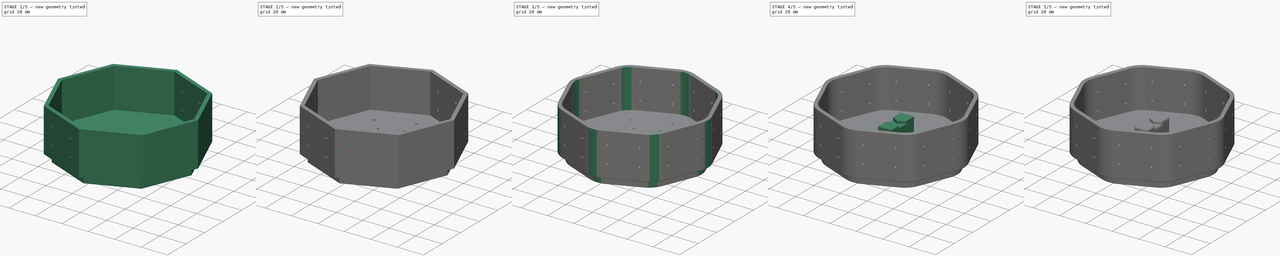
[diagram: build sequence overview — one tinted view per stage of 5, left to right]
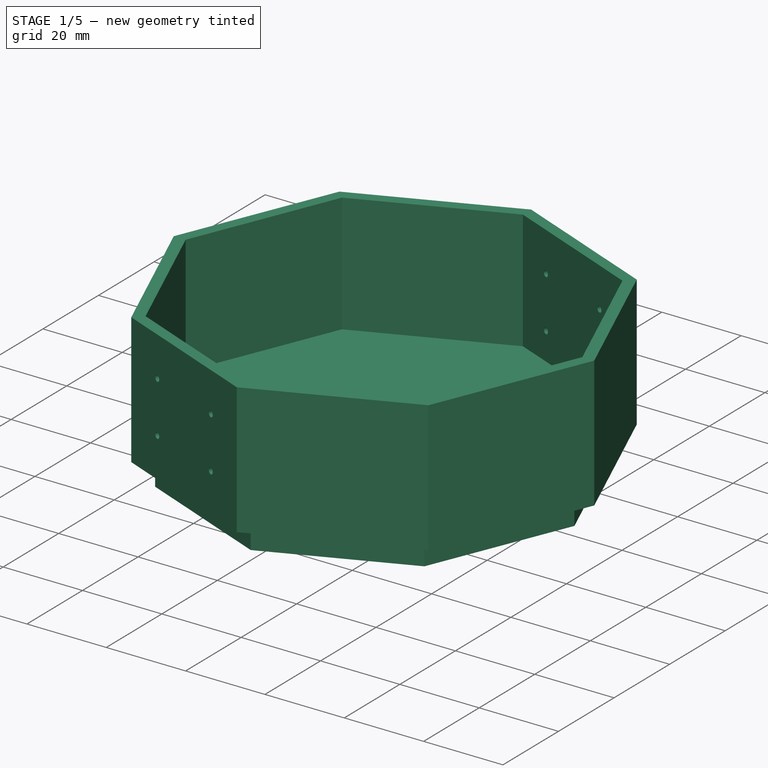
[diagram: stage 1 of 5 — iso view after this stage's code; geometry added in this stage tinted green]
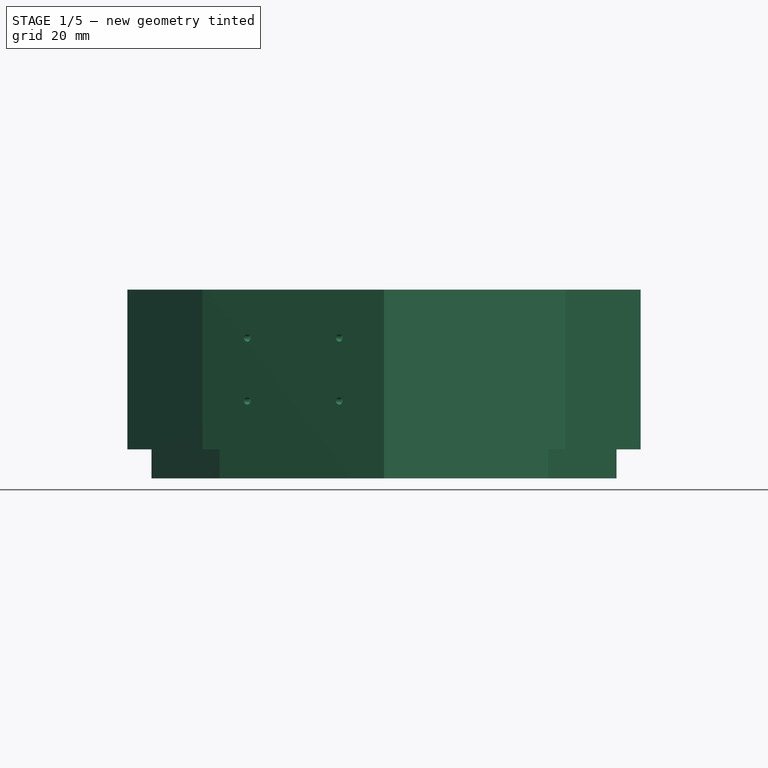
[diagram: stage 1 of 5 — front view after this stage's code; geometry added in this stage tinted green]
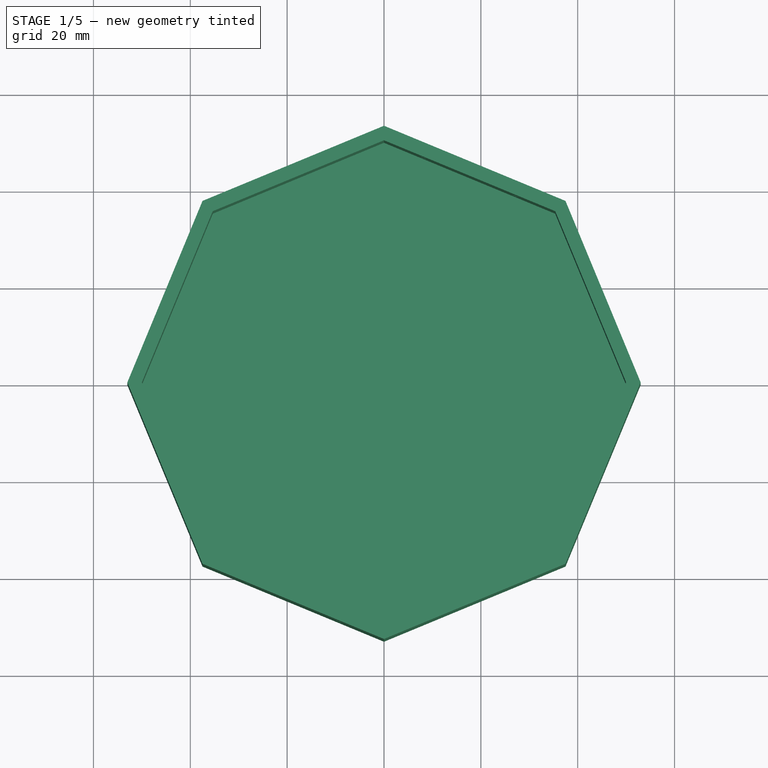
[diagram: stage 1 of 5 — top view after this stage's code; geometry added in this stage tinted green]
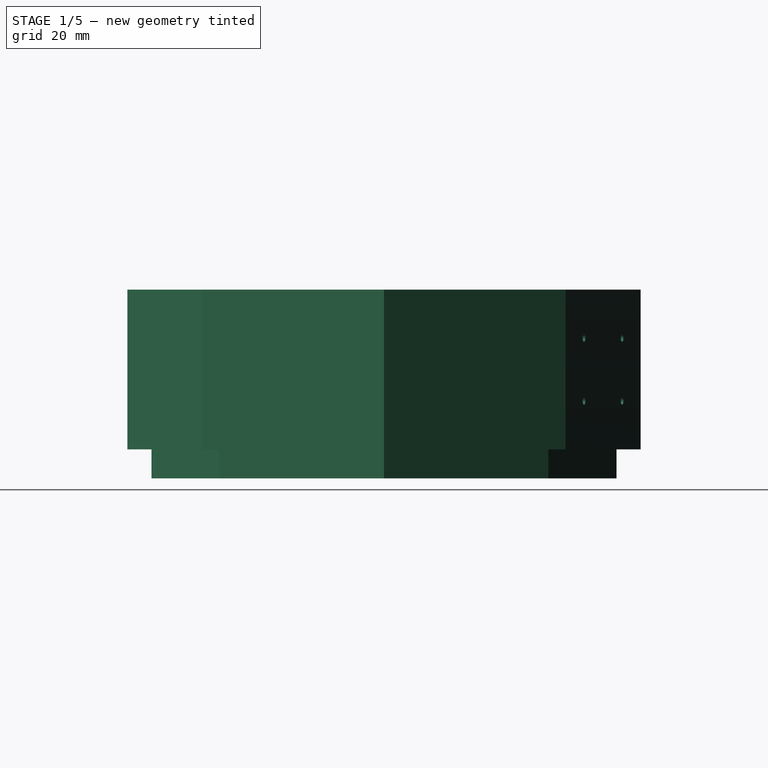
[diagram: stage 1 of 5 — right view after this stage's code; geometry added in this stage tinted green]
FCSTD DOCUMENT  (FreeCAD 0.19R24276 (Git))
Label: stackable-mold-01-03
License: All rights reserved
LicenseURL: http://en.wikipedia.org/wiki/All_rights_reserved
objects: Sketcher::SketchObject×14, PartDesign::Pocket×10, PartDesign::Fillet×7, PartDesign::Pad×4, PartDesign::Body×2, Spreadsheet::Sheet×1
note: 58 computed .brp shape members not serialized (recipe doc carries the construction recipe); baked Part::Feature solids carry a one-line shape summary decoded from their .brp

FEATURE [Sketcher::SketchObject] Sketch
  FullyConstrained = true
  MapMode = 5
  Support = -> [XY_Plane]
  expr: Constraints[25] = Spreadsheet.outer_dia
  sketch-geometry (9):
    g0: LineSegment StartX=-37.4767 StartY=37.4767 StartZ=0 EndX=-53 EndY=0 EndZ=0
    g1: LineSegment StartX=-53 StartY=0 StartZ=0 EndX=-37.4767 EndY=-37.4767 EndZ=0
    g2: LineSegment StartX=-37.4767 StartY=-37.4767 StartZ=0 EndX=0 EndY=-53 EndZ=0
    g3: LineSegment StartX=0 StartY=-53 StartZ=0 EndX=37.4767 EndY=-37.4767 EndZ=0
    g4: LineSegment StartX=37.4767 StartY=-37.4767 StartZ=0 EndX=53 EndY=0 EndZ=0
    g5: LineSegment StartX=53 StartY=0 StartZ=0 EndX=37.4767 EndY=37.4767 EndZ=0
    g6: LineSegment StartX=37.4767 StartY=37.4767 StartZ=0 EndX=7.1e-15 EndY=53 EndZ=0
    g7: LineSegment StartX=7.1e-15 StartY=53 StartZ=0 EndX=-37.4767 EndY=37.4767 EndZ=0
    g8: Circle CenterX=0 CenterY=0 CenterZ=0 NormalX=0 NormalY=0 NormalZ=1 AngleXU=0 Radius=53
  constraints (20):
    c: Coincident(g0,g1)
    c: Coincident(g1,g2)
    c: Coincident(g2,g3)
    c: Coincident(g3,g4)
    c: Coincident(g4,g5)
    c: Coincident(g5,g6)
    c: Coincident(g6,g7)
    c: Coincident(g7,g0)
    c: Equal(g0, g1-g7) x7
    c: PointOnObject(g0,g8)
    c: PointOnObject(g1,g8)
    c: PointOnObject(g2,g8)
    c: PointOnObject(g3,g8)
    c: PointOnObject(g4,g8)
    c: PointOnObject(g5,g8)
    c: PointOnObject(g6,g8)
    c: PointOnObject(g7,g8)
    c: Coincident(g8,g-1)
    c: PointOnObject(g0,g-1)
    c: DistanceX(g0,g4) = 106
FEATURE [Spreadsheet::Sheet] Spreadsheet
  cells = A1=inner_dia; B1(inner_dia)==100mm; A2=inner_height; B2(inner_height)==30mm; A3=thickness; B3(thickness)==3mm; A4=outer_dia; B4(outer_dia)==inner_dia + thickness * 2; A5=outer_height; B5(outer_height)==inner_height + thickness; A6=stack_margin; B6(stack_margin)==1mm; A7=stack_height; B7(stack_height)==thickness * 2; A9=lid_dia; B9(lid_dia)==inner_dia - stack_margin * 2; A10=handle_width; B10(handle_width)==10mm; A11=handle_height; B11(handle_height)==15mm; A12=handle_length; B12(handle_length)==lid_dia / 4; A13=slot_width; B13(slot_width)==2mm; A14=slot_height; B14(slot_height)==2mm; A16=filet_xs; B16(filet_xs)==0.5mm; A17=filet_sm; B17(filet_sm)==1.2mm; A18=filet_lg; B18(filet_lg)==8mm; A19=filet_xl; B19(filet_xl)==inner_dia / 5.5; A21=holes_dia; B21(holes_dia)==1.5mm; A22=holes_margin; B22(holes_margin)==inner_height / 3; A24=coin_hole_outer; B24(coin_hole_outer)==32mm; A25=coin_hole_inner; B25(coin_hole_inner)==28mm; A26=coin_height; B26(coin_height)==2mm
FEATURE [PartDesign::Pad] Pad
  Direction = (0,0,1)
  Length = 33
  Length2 = 100
  Profile = -> Sketch
  Type = 0
  expr: Length = Spreadsheet.outer_height
FEATURE [Sketcher::SketchObject] Sketch001
  FullyConstrained = true
  MapMode = 5
  Placement = pos=(0,0,33) rot=(0,0,1;0rad)
  Support = -> [Pad]
  expr: Constraints[25] = Spreadsheet.inner_dia
  sketch-geometry (9):
    g0: LineSegment StartX=-35.3553 StartY=35.3553 StartZ=0 EndX=-50 EndY=0 EndZ=0
    g1: LineSegment StartX=-50 StartY=0 StartZ=0 EndX=-35.3553 EndY=-35.3553 EndZ=0
    g2: LineSegment StartX=-35.3553 StartY=-35.3553 StartZ=0 EndX=7.1e-15 EndY=-50 EndZ=0
    g3: LineSegment StartX=7.1e-15 StartY=-50 StartZ=0 EndX=35.3553 EndY=-35.3553 EndZ=0
    g4: LineSegment StartX=35.3553 StartY=-35.3553 StartZ=0 EndX=50 EndY=7.1e-15 EndZ=0
    g5: LineSegment StartX=50 StartY=7.1e-15 StartZ=0 EndX=35.3553 EndY=35.3553 EndZ=0
    g6: LineSegment StartX=35.3553 StartY=35.3553 StartZ=0 EndX=-7.1e-15 EndY=50 EndZ=0
    g7: LineSegment StartX=-7.1e-15 StartY=50 StartZ=0 EndX=-35.3553 EndY=35.3553 EndZ=0
    g8: Circle CenterX=0 CenterY=0 CenterZ=0 NormalX=0 NormalY=0 NormalZ=1 AngleXU=0 Radius=50
  constraints (20):
    c: Coincident(g0,g1)
    c: Coincident(g1,g2)
    c: Coincident(g2,g3)
    c: Coincident(g3,g4)
    c: Coincident(g4,g5)
    c: Coincident(g5,g6)
    c: Coincident(g6,g7)
    c: Coincident(g7,g0)
    c: Equal(g0, g1-g7) x7
    c: PointOnObject(g0,g8)
    c: PointOnObject(g1,g8)
    c: PointOnObject(g2,g8)
    c: PointOnObject(g3,g8)
    c: PointOnObject(g4,g8)
    c: PointOnObject(g5,g8)
    c: PointOnObject(g6,g8)
    c: PointOnObject(g7,g8)
    c: Coincident(g8,g-1)
    c: PointOnObject(g0,g-1)
    c: DistanceX(g0,g4) = 100
FEATURE [PartDesign::Pocket] Pocket
  BaseFeature = -> Pad
  Length = 30
  Length2 = 100
  Profile = -> Sketch001
  Type = 0
  expr: Length = Spreadsheet.inner_height
FEATURE [Sketcher::SketchObject] Sketch002
  ExternalGeometry = -> [Pocket]
  FullyConstrained = true
  MapMode = 5
  Placement = pos=(0,0,0) rot=(1,0,0;3.14159rad)
  Support = -> [Pocket]
  expr: Constraints[25] = Spreadsheet.thickness + Spreadsheet.stack_margin * 2
  sketch-geometry (9):
    g0: LineSegment StartX=-33.9411 StartY=33.9411 StartZ=0 EndX=-48 EndY=0 EndZ=0
    g1: LineSegment StartX=-48 StartY=0 StartZ=0 EndX=-33.9411 EndY=-33.9411 EndZ=0
    g2: LineSegment StartX=-33.9411 StartY=-33.9411 StartZ=0 EndX=0 EndY=-48 EndZ=0
    g3: LineSegment StartX=0 StartY=-48 StartZ=0 EndX=33.9411 EndY=-33.9411 EndZ=0
    g4: LineSegment StartX=33.9411 StartY=-33.9411 StartZ=0 EndX=48 EndY=-7.1e-15 EndZ=0
    g5: LineSegment StartX=48 StartY=-7.1e-15 StartZ=0 EndX=33.9411 EndY=33.9411 EndZ=0
    g6: LineSegment StartX=33.9411 StartY=33.9411 StartZ=0 EndX=0 EndY=48 EndZ=0
    g7: LineSegment StartX=0 StartY=48 StartZ=0 EndX=-33.9411 EndY=33.9411 EndZ=0
    g8: Circle CenterX=0 CenterY=0 CenterZ=0 NormalX=0 NormalY=0 NormalZ=1 AngleXU=0 Radius=48
  constraints (20):
    c: Coincident(g0,g1)
    c: Coincident(g1,g2)
    c: Coincident(g2,g3)
    c: Coincident(g3,g4)
    c: Coincident(g4,g5)
    c: Coincident(g5,g6)
    c: Coincident(g6,g7)
    c: Coincident(g7,g0)
    c: Equal(g0, g1-g7) x7
    c: PointOnObject(g0,g8)
    c: PointOnObject(g1,g8)
    c: PointOnObject(g2,g8)
    c: PointOnObject(g3,g8)
    c: PointOnObject(g4,g8)
    c: PointOnObject(g5,g8)
    c: PointOnObject(g6,g8)
    c: PointOnObject(g7,g8)
    c: Coincident(g8,g-1)
    c: PointOnObject(g0,g-1)
    c: DistanceX(g-3,g0) = 5
FEATURE [PartDesign::Pad] Pad001
  BaseFeature = -> Pocket
  Direction = (0,0,-1)
  Length = 6
  Length2 = 100
  Profile = -> Sketch002
  Type = 0
  expr: Length = Spreadsheet.stack_height
FEATURE [Sketcher::SketchObject] Sketch003
  ExternalGeometry = -> [Pad001]
  FullyConstrained = true
  MapMode = 5
  Placement = pos=(-18.7383,-45.2383,0) rot=(0.962637,-0.19148,-0.19148;1.60887rad)
  Support = -> [Pad001]
  expr: Constraints[20] = Spreadsheet.holes_margin
  expr: Constraints[36] = Spreadsheet.holes_dia
  sketch-geometry (16):
    g0: LineSegment StartX=-20.2822 StartY=23 StartZ=0 EndX=20.2822 EndY=23 EndZ=0
    g1: LineSegment StartX=-20.2822 StartY=10 StartZ=0 EndX=20.2822 EndY=10 EndZ=0
    g2: LineSegment StartX=-10.2822 StartY=33 StartZ=0 EndX=-10.2822 EndY=0 EndZ=0
    g3: LineSegment StartX=10.2822 StartY=33 StartZ=0 EndX=10.2822 EndY=0 EndZ=0
    g4: LineSegment StartX=-20.2822 StartY=23 StartZ=0 EndX=-20.2822 EndY=33 EndZ=0
    g5: LineSegment StartX=-20.2822 StartY=10 StartZ=0 EndX=-20.2822 EndY=0 EndZ=0
    g6: LineSegment StartX=-10.2822 StartY=33 StartZ=0 EndX=-20.2822 EndY=33 EndZ=0
    g7: LineSegment StartX=10.2822 StartY=33 StartZ=0 EndX=20.2822 EndY=33 EndZ=0
    g8: GeomPoint X=-10.2822 Y=23 Z=0
    g9: GeomPoint X=-10.2822 Y=10 Z=0
    g10: GeomPoint X=10.2822 Y=10 Z=0
    g11: GeomPoint X=10.2822 Y=23 Z=0
    g12: Circle CenterX=-10.2822 CenterY=23 CenterZ=0 NormalX=0 NormalY=0 NormalZ=1 AngleXU=0 Radius=0.75
    g13: Circle CenterX=-10.2822 CenterY=10 CenterZ=0 NormalX=0 NormalY=0 NormalZ=1 AngleXU=0 Radius=0.75
    g14: Circle CenterX=10.2822 CenterY=10 CenterZ=0 NormalX=0 NormalY=0 NormalZ=1 AngleXU=0 Radius=0.75
    g15: Circle CenterX=10.2822 CenterY=23 CenterZ=0 NormalX=0 NormalY=0 NormalZ=1 AngleXU=0 Radius=0.75
  constraints (40):
    c: PointOnObject(g0,g-4)
    c: PointOnObject(g0,g-5)
    c: Horizontal(g0)
    c: PointOnObject(g1,g-4)
    c: PointOnObject(g1,g-5)
    c: Horizontal(g1)
    c: PointOnObject(g2,g-3)
    c: PointOnObject(g2,g-6)
    c: Vertical(g2)
    c: PointOnObject(g3,g-3)
    c: PointOnObject(g3,g-6)
    c: Vertical(g3)
    c: Coincident(g4,g0)
    c: Coincident(g4,g-4)
    c: Coincident(g5,g1)
    c: Coincident(g5,g-6)
    c: Coincident(g6,g2)
    c: Coincident(g6,g4)
    c: Coincident(g7,g3)
    c: Coincident(g7,g-5)
    c: DistanceY(g4,g4) = 10
    c: Equal(g6,g7)
    c: Equal(g7,g5)
    c: Equal(g5,g4)
    c: PointOnObject(g8,g2)
    c: PointOnObject(g9,g2)
    c: PointOnObject(g10,g3)
    c: PointOnObject(g11,g3)
    c: PointOnObject(g8,g0)
    c: PointOnObject(g9,g1)
    c: PointOnObject(g11,g0)
    c: PointOnObject(g10,g1)
    c: Coincident(g12,g8)
    c: Coincident(g13,g9)
    c: Coincident(g14,g10)
    c: Coincident(g15,g11)
    c: Diameter(g12) = 1.5
    c: Equal(g12,g13)
    c: Equal(g13,g14)
    c: Equal(g14,g15)
FEATURE [PartDesign::Pocket] Pocket001
  BaseFeature = -> Pad001
  Length = 5
  Length2 = 100
  Profile = -> Sketch003
  Type = 1
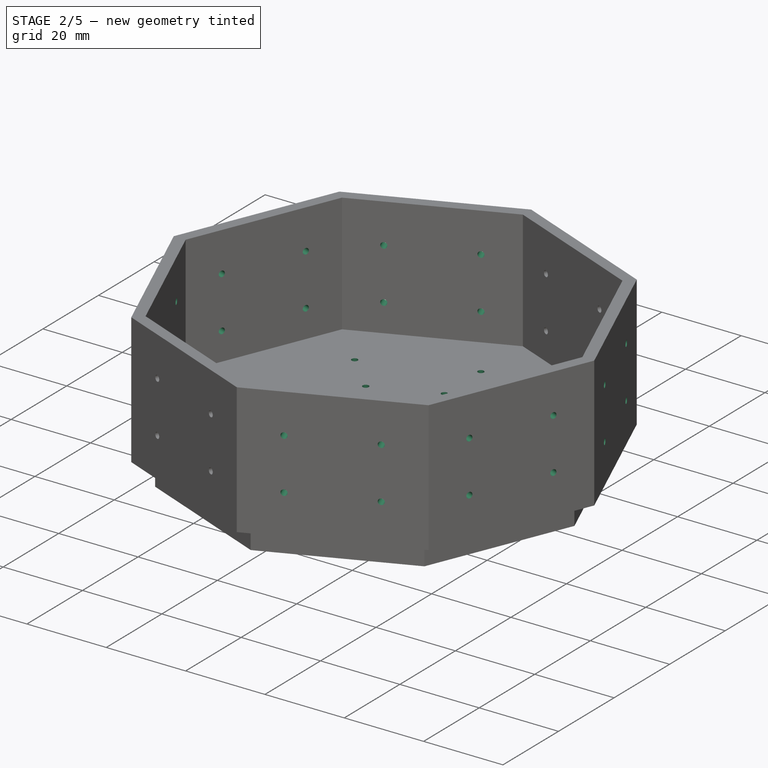
[diagram: stage 2 of 5 — iso view after this stage's code; geometry added in this stage tinted green]
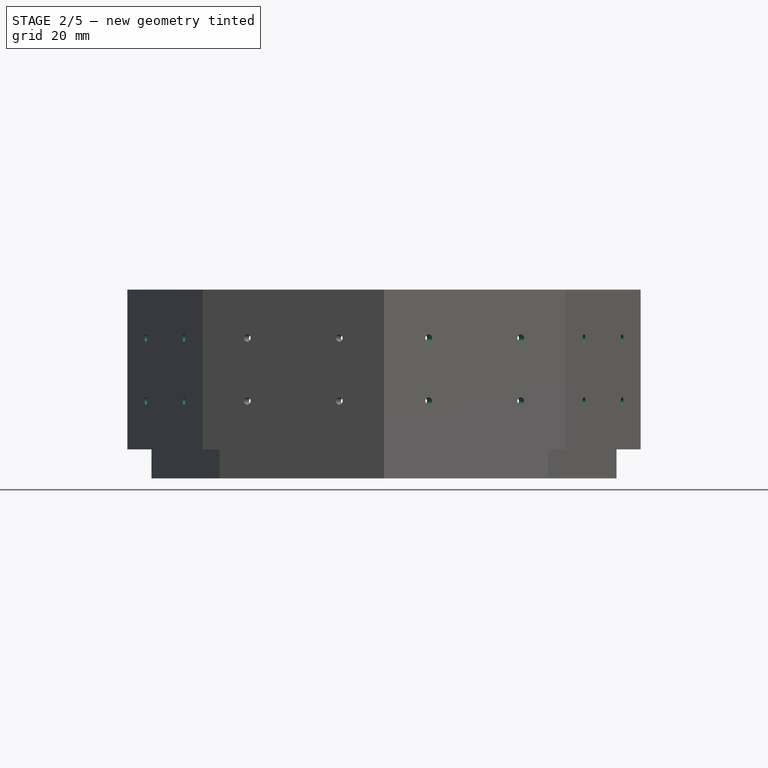
[diagram: stage 2 of 5 — front view after this stage's code; geometry added in this stage tinted green]
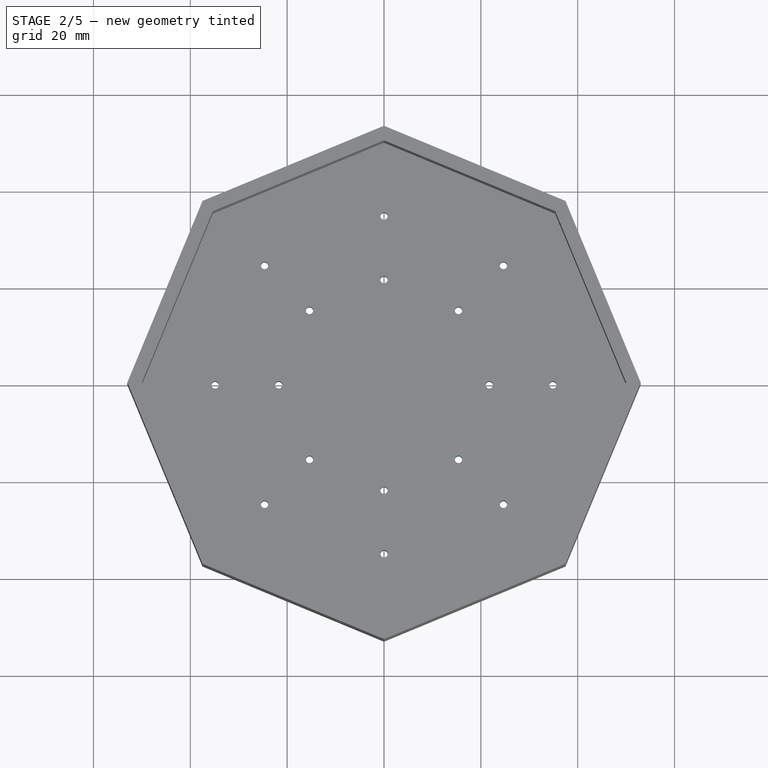
[diagram: stage 2 of 5 — top view after this stage's code; geometry added in this stage tinted green]
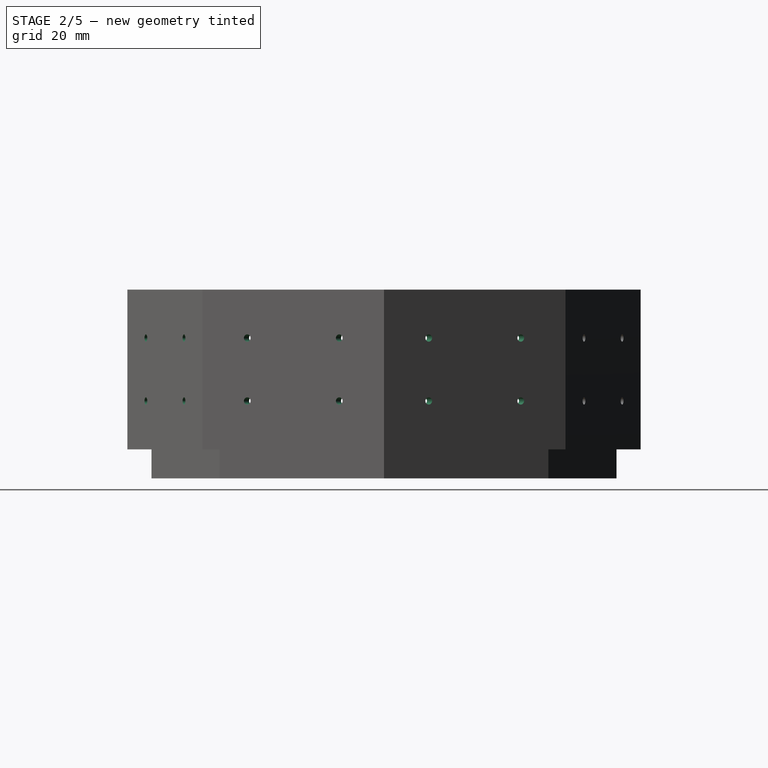
[diagram: stage 2 of 5 — right view after this stage's code; geometry added in this stage tinted green]
FEATURE [Sketcher::SketchObject] Sketch004
  ExternalGeometry = -> [Pocket001]
  FullyConstrained = true
  MapMode = 5
  Placement = pos=(18.7383,-45.2383,0) rot=(0.962637,0.19148,0.19148;1.60887rad)
  Support = -> [Pocket001]
  expr: Constraints[20] = Spreadsheet.holes_margin
  expr: Constraints[36] = Spreadsheet.holes_dia
  sketch-geometry (16):
    g0: LineSegment StartX=-10.2822 StartY=33 StartZ=0 EndX=-10.2822 EndY=0 EndZ=0
    g1: LineSegment StartX=10.2822 StartY=33 StartZ=0 EndX=10.2822 EndY=0 EndZ=0
    g2: LineSegment StartX=-20.2822 StartY=23 StartZ=0 EndX=20.2822 EndY=23 EndZ=0
    g3: LineSegment StartX=-20.2822 StartY=10 StartZ=0 EndX=20.2822 EndY=10 EndZ=0
    g4: LineSegment StartX=-20.2822 StartY=33 StartZ=0 EndX=-10.2822 EndY=33 EndZ=0
    g5: LineSegment StartX=10.2822 StartY=33 StartZ=0 EndX=20.2822 EndY=33 EndZ=0
    g6: LineSegment StartX=-20.2822 StartY=33 StartZ=0 EndX=-20.2822 EndY=23 EndZ=0
    g7: LineSegment StartX=-20.2822 StartY=10 StartZ=0 EndX=-20.2822 EndY=0 EndZ=0
    g8: GeomPoint X=-10.2822 Y=23 Z=0
    g9: GeomPoint X=10.2822 Y=23 Z=0
    g10: GeomPoint X=10.2822 Y=10 Z=0
    g11: GeomPoint X=-10.2822 Y=10 Z=0
    g12: Circle CenterX=-10.2822 CenterY=23 CenterZ=0 NormalX=0 NormalY=0 NormalZ=1 AngleXU=0 Radius=0.75
    g13: Circle CenterX=-10.2822 CenterY=10 CenterZ=0 NormalX=0 NormalY=0 NormalZ=1 AngleXU=0 Radius=0.75
    g14: Circle CenterX=10.2822 CenterY=23 CenterZ=0 NormalX=0 NormalY=0 NormalZ=1 AngleXU=0 Radius=0.75
    g15: Circle CenterX=10.2822 CenterY=10 CenterZ=0 NormalX=0 NormalY=0 NormalZ=1 AngleXU=0 Radius=0.75
  constraints (40):
    c: PointOnObject(g0,g-3)
    c: PointOnObject(g0,g-5)
    c: Vertical(g0)
    c: PointOnObject(g1,g-3)
    c: PointOnObject(g1,g-5)
    c: Vertical(g1)
    c: PointOnObject(g2,g-4)
    c: PointOnObject(g2,g-6)
    c: Horizontal(g2)
    c: PointOnObject(g3,g-4)
    c: PointOnObject(g3,g-6)
    c: Horizontal(g3)
    c: Coincident(g4,g-4)
    c: Coincident(g4,g0)
    c: Coincident(g5,g1)
    c: Coincident(g5,g-6)
    c: Coincident(g6,g4)
    c: Coincident(g6,g2)
    c: Coincident(g7,g3)
    c: Coincident(g7,g-5)
    c: DistanceY(g6,g6) = 10
    c: Equal(g4,g5)
    c: Equal(g5,g7)
    c: Equal(g7,g6)
    c: PointOnObject(g8,g0)
    c: PointOnObject(g9,g1)
    c: PointOnObject(g10,g1)
    c: PointOnObject(g11,g0)
    c: PointOnObject(g8,g2)
    c: PointOnObject(g11,g3)
    c: PointOnObject(g9,g2)
    c: PointOnObject(g10,g3)
    c: Coincident(g12,g8)
    c: Coincident(g13,g11)
    c: Coincident(g14,g9)
    c: Coincident(g15,g10)
    c: Diameter(g12) = 1.5
    c: Equal(g14,g15)
    c: Equal(g15,g13)
    c: Equal(g13,g12)
FEATURE [PartDesign::Pocket] Pocket002
  BaseFeature = -> Pocket001
  Length = 5
  Length2 = 100
  Profile = -> Sketch004
  Type = 1
FEATURE [Sketcher::SketchObject] Sketch005
  ExternalGeometry = -> [Pocket002]
  FullyConstrained = true
  MapMode = 5
  Placement = pos=(45.2383,-18.7383,0) rot=(0.726831,0.485653,0.485653;1.88458rad)
  Support = -> [Pocket002]
  expr: Constraints[20] = Spreadsheet.holes_margin
  expr: Constraints[36] = Spreadsheet.holes_dia
  sketch-geometry (16):
    g0: LineSegment StartX=-10.2822 StartY=33 StartZ=0 EndX=-10.2822 EndY=0 EndZ=0
    g1: LineSegment StartX=10.2822 StartY=33 StartZ=0 EndX=10.2822 EndY=0 EndZ=0
    g2: LineSegment StartX=-20.2822 StartY=23 StartZ=0 EndX=20.2822 EndY=23 EndZ=0
    g3: LineSegment StartX=-20.2822 StartY=10 StartZ=0 EndX=20.2822 EndY=10 EndZ=0
    g4: LineSegment StartX=-20.2822 StartY=33 StartZ=0 EndX=-10.2822 EndY=33 EndZ=0
    g5: LineSegment StartX=-20.2822 StartY=33 StartZ=0 EndX=-20.2822 EndY=23 EndZ=0
    g6: LineSegment StartX=10.2822 StartY=33 StartZ=0 EndX=20.2822 EndY=33 EndZ=0
    g7: LineSegment StartX=-20.2822 StartY=10 StartZ=0 EndX=-20.2822 EndY=-1.8e-15 EndZ=0
    g8: GeomPoint X=-10.2822 Y=23 Z=0
    g9: GeomPoint X=10.2822 Y=23 Z=0
    g10: GeomPoint X=10.2822 Y=10 Z=0
    g11: GeomPoint X=-10.2822 Y=10 Z=0
    g12: Circle CenterX=-10.2822 CenterY=23 CenterZ=0 NormalX=0 NormalY=0 NormalZ=1 AngleXU=0 Radius=0.75
    g13: Circle CenterX=-10.2822 CenterY=10 CenterZ=0 NormalX=0 NormalY=0 NormalZ=1 AngleXU=0 Radius=0.75
    g14: Circle CenterX=10.2822 CenterY=10 CenterZ=0 NormalX=0 NormalY=0 NormalZ=1 AngleXU=0 Radius=0.75
    g15: Circle CenterX=10.2822 CenterY=23 CenterZ=0 NormalX=0 NormalY=0 NormalZ=1 AngleXU=0 Radius=0.75
  constraints (40):
    c: PointOnObject(g0,g-3)
    c: PointOnObject(g0,g-6)
    c: Vertical(g0)
    c: PointOnObject(g1,g-3)
    c: PointOnObject(g1,g-6)
    c: Vertical(g1)
    c: PointOnObject(g2,g-4)
    c: PointOnObject(g2,g-5)
    c: Horizontal(g2)
    c: PointOnObject(g3,g-4)
    c: PointOnObject(g3,g-5)
    c: Horizontal(g3)
    c: Coincident(g4,g-4)
    c: Coincident(g4,g0)
    c: Coincident(g5,g4)
    c: Coincident(g5,g2)
    c: Coincident(g6,g1)
    c: Coincident(g6,g-5)
    c: Coincident(g7,g3)
    c: Coincident(g7,g-6)
    c: DistanceY(g5,g5) = 10
    c: Equal(g5,g7)
    c: Equal(g7,g6)
    c: Equal(g6,g4)
    c: PointOnObject(g8,g0)
    c: PointOnObject(g9,g1)
    c: PointOnObject(g10,g1)
    c: PointOnObject(g11,g0)
    c: PointOnObject(g8,g2)
    c: PointOnObject(g9,g2)
    c: PointOnObject(g10,g3)
    c: PointOnObject(g11,g3)
    c: Coincident(g12,g8)
    c: Coincident(g13,g11)
    c: Coincident(g14,g10)
    c: Coincident(g15,g9)
    c: Diameter(g12) = 1.5
    c: Equal(g15,g14)
    c: Equal(g14,g13)
    c: Equal(g13,g12)
FEATURE [PartDesign::Pocket] Pocket003
  BaseFeature = -> Pocket002
  Length = 5
  Length2 = 100
  Profile = -> Sketch005
  Type = 1
FEATURE [Sketcher::SketchObject] Sketch006
  ExternalGeometry = -> [Pocket003]
  FullyConstrained = true
  MapMode = 5
  Placement = pos=(45.2383,18.7383,0) rot=(0.427192,0.639338,0.639338;2.33414rad)
  Support = -> [Pocket003]
  expr: Constraints[36] = Spreadsheet.holes_dia
  sketch-geometry (16):
    g0: LineSegment StartX=-10.2822 StartY=33 StartZ=0 EndX=-10.2822 EndY=0 EndZ=0
    g1: LineSegment StartX=10.2822 StartY=33 StartZ=0 EndX=10.2822 EndY=0 EndZ=0
    g2: LineSegment StartX=-20.2822 StartY=23 StartZ=0 EndX=20.2822 EndY=23 EndZ=0
    g3: LineSegment StartX=-20.2822 StartY=10 StartZ=0 EndX=20.2822 EndY=10 EndZ=0
    g4: LineSegment StartX=-20.2822 StartY=33 StartZ=0 EndX=-10.2822 EndY=33 EndZ=0
    g5: LineSegment StartX=-20.2822 StartY=33 StartZ=0 EndX=-20.2822 EndY=23 EndZ=0
    g6: LineSegment StartX=10.2822 StartY=33 StartZ=0 EndX=20.2822 EndY=33 EndZ=0
    g7: LineSegment StartX=-20.2822 StartY=10 StartZ=0 EndX=-20.2822 EndY=-1.8e-15 EndZ=0
    g8: GeomPoint X=-10.2822 Y=23 Z=0
    g9: GeomPoint X=10.2822 Y=23 Z=0
    g10: GeomPoint X=-10.2822 Y=10 Z=0
    g11: GeomPoint X=10.2822 Y=10 Z=0
    g12: Circle CenterX=-10.2822 CenterY=23 CenterZ=0 NormalX=0 NormalY=0 NormalZ=1 AngleXU=0 Radius=0.75
    g13: Circle CenterX=-10.2822 CenterY=10 CenterZ=0 NormalX=0 NormalY=0 NormalZ=1 AngleXU=0 Radius=0.75
    g14: Circle CenterX=10.2822 CenterY=10 CenterZ=0 NormalX=0 NormalY=0 NormalZ=1 AngleXU=0 Radius=0.75
    g15: Circle CenterX=10.2822 CenterY=23 CenterZ=0 NormalX=0 NormalY=0 NormalZ=1 AngleXU=0 Radius=0.75
  constraints (40):
    c: PointOnObject(g0,g-3)
    c: PointOnObject(g0,g-5)
    c: Vertical(g0)
    c: PointOnObject(g1,g-3)
    c: PointOnObject(g1,g-5)
    c: Vertical(g1)
    c: PointOnObject(g2,g-4)
    c: PointOnObject(g2,g-6)
    c: Horizontal(g2)
    c: PointOnObject(g3,g-4)
    c: PointOnObject(g3,g-6)
    c: Horizontal(g3)
    c: Coincident(g4,g-4)
    c: Coincident(g4,g0)
    c: Coincident(g5,g4)
    c: Coincident(g5,g2)
    c: Coincident(g6,g1)
    c: Coincident(g6,g-6)
    c: Coincident(g7,g3)
    c: Coincident(g7,g-5)
    c: DistanceY(g5,g5) = 10
    c: Equal(g4,g6)
    c: Equal(g6,g7)
    c: Equal(g7,g5)
    c: PointOnObject(g8,g0)
    c: PointOnObject(g9,g1)
    c: PointOnObject(g10,g0)
    c: PointOnObject(g11,g1)
    c: PointOnObject(g8,g2)
    c: PointOnObject(g9,g2)
    c: PointOnObject(g10,g3)
    c: PointOnObject(g11,g3)
    c: Coincident(g12,g8)
    c: Coincident(g13,g10)
    c: Coincident(g14,g11)
    c: Coincident(g15,g9)
    c: Diameter(g12) = 1.5
    c: Equal(g12,g13)
    c: Equal(g13,g14)
    c: Equal(g14,g15)
FEATURE [PartDesign::Pocket] Pocket004
  BaseFeature = -> Pocket003
  Length = 5
  Length2 = 100
  Profile = -> Sketch006
  Type = 1
FEATURE [Sketcher::SketchObject] Sketch007
  ExternalGeometry = -> [Pocket004]
  FullyConstrained = true
  MapMode = 5
  Placement = pos=(0,0,-6) rot=(1,0,0;3.14159rad)
  Support = -> [Pocket004]
  expr: Constraints[23] = (Spreadsheet.outer_dia - Spreadsheet.stack_margin) / 2 / 4
  expr: Constraints[68] = Spreadsheet.holes_dia
  expr: Constraints[84] = (Spreadsheet.outer_dia - Spreadsheet.stack_margin) / 2 / 4
  sketch-geometry (42):
    g0: LineSegment StartX=0 StartY=48 StartZ=0 EndX=0 EndY=0 EndZ=0
    g1: LineSegment StartX=0 StartY=0 StartZ=0 EndX=33.9411 EndY=33.9411 EndZ=0
    g2: LineSegment StartX=0 StartY=0 StartZ=0 EndX=48 EndY=-7.1e-15 EndZ=0
    g3: LineSegment StartX=0 StartY=0 StartZ=0 EndX=33.9411 EndY=-33.9411 EndZ=0
    g4: LineSegment StartX=0 StartY=0 StartZ=0 EndX=0 EndY=-48 EndZ=0
    g5: LineSegment StartX=0 StartY=0 StartZ=0 EndX=-33.9411 EndY=-33.9411 EndZ=0
    g6: LineSegment StartX=0 StartY=0 StartZ=0 EndX=-48 EndY=0 EndZ=0
    g7: LineSegment StartX=0 StartY=0 StartZ=0 EndX=-33.9411 EndY=33.9411 EndZ=0
    g8: LineSegment StartX=-33.9411 StartY=33.9411 StartZ=0 EndX=-24.6603 EndY=24.6603 EndZ=0
    g9: Circle CenterX=0 CenterY=0 CenterZ=0 NormalX=0 NormalY=0 NormalZ=1 AngleXU=0 Radius=34.875
    g10: Circle CenterX=0 CenterY=0 CenterZ=0 NormalX=0 NormalY=0 NormalZ=1 AngleXU=0 Radius=21.75
    g11: GeomPoint X=-34.875 Y=0 Z=0
    g12: GeomPoint X=-21.75 Y=0 Z=0
    g13: GeomPoint X=0 Y=34.875 Z=0
    g14: GeomPoint X=0 Y=21.75 Z=0
    g15: GeomPoint X=24.6603 Y=24.6603 Z=0
    g16: GeomPoint X=15.3796 Y=15.3796 Z=0
    g17: GeomPoint X=34.875 Y=-5.2e-15 Z=0
    g18: GeomPoint X=21.75 Y=-3.2e-15 Z=0
    g19: GeomPoint X=15.3796 Y=-15.3796 Z=0
    g20: GeomPoint X=24.6603 Y=-24.6603 Z=0
    g21: GeomPoint X=0 Y=-21.75 Z=0
    g22: GeomPoint X=0 Y=-34.875 Z=0
    g23: GeomPoint X=-15.3796 Y=-15.3796 Z=0
    g24: GeomPoint X=-24.6603 Y=-24.6603 Z=0
    g25: GeomPoint X=-15.3796 Y=15.3796 Z=0
    g26: Circle CenterX=-24.6603 CenterY=24.6603 CenterZ=0 NormalX=0 NormalY=0 NormalZ=1 AngleXU=0 Radius=0.75
    g27: Circle CenterX=-15.3796 CenterY=15.3796 CenterZ=0 NormalX=0 NormalY=0 NormalZ=1 AngleXU=0 Radius=0.75
    g28: Circle CenterX=0 CenterY=21.75 CenterZ=0 NormalX=0 NormalY=0 NormalZ=1 AngleXU=0 Radius=0.75
    g29: Circle CenterX=0 CenterY=34.875 CenterZ=0 NormalX=0 NormalY=0 NormalZ=1 AngleXU=0 Radius=0.75
    g30: Circle CenterX=24.6603 CenterY=24.6603 CenterZ=0 NormalX=0 NormalY=0 NormalZ=1 AngleXU=0 Radius=0.75
    g31: Circle CenterX=15.3796 CenterY=15.3796 CenterZ=0 NormalX=0 NormalY=0 NormalZ=1 AngleXU=0 Radius=0.75
    g32: Circle CenterX=21.75 CenterY=-3.2e-15 CenterZ=0 NormalX=0 NormalY=0 NormalZ=1 AngleXU=0 Radius=0.75
    g33: Circle CenterX=34.875 CenterY=-5.2e-15 CenterZ=0 NormalX=0 NormalY=0 NormalZ=1 AngleXU=0 Radius=0.75
    g34: Circle CenterX=24.6603 CenterY=-24.6603 CenterZ=0 NormalX=0 NormalY=0 NormalZ=1 AngleXU=0 Radius=0.75
    g35: Circle CenterX=15.3796 CenterY=-15.3796 CenterZ=0 NormalX=0 NormalY=0 NormalZ=1 AngleXU=0 Radius=0.75
    g36: Circle CenterX=0 CenterY=-21.75 CenterZ=0 NormalX=0 NormalY=0 NormalZ=1 AngleXU=0 Radius=0.75
    g37: Circle CenterX=0 CenterY=-34.875 CenterZ=0 NormalX=0 NormalY=0 NormalZ=1 AngleXU=0 Radius=0.75
    g38: Circle CenterX=-24.6603 CenterY=-24.6603 CenterZ=0 NormalX=0 NormalY=0 NormalZ=1 AngleXU=0 Radius=0.75
    g39: Circle CenterX=-15.3796 CenterY=-15.3796 CenterZ=0 NormalX=0 NormalY=0 NormalZ=1 AngleXU=0 Radius=0.75
    g40: Circle CenterX=-34.875 CenterY=0 CenterZ=0 NormalX=0 NormalY=0 NormalZ=1 AngleXU=0 Radius=0.75
    g41: Circle CenterX=-21.75 CenterY=0 CenterZ=0 NormalX=0 NormalY=0 NormalZ=1 AngleXU=0 Radius=0.75
  constraints (85):
    c: Coincident(g0,g-10)
    c: Coincident(g1,g-10)
    c: Coincident(g2,g-9)
    c: Coincident(g3,g-8)
    c: Coincident(g4,g-7)
    c: Coincident(g5,g-6)
    c: Coincident(g6,g-5)
    c: Coincident(g7,g-4)
    c: Coincident(g8,g7)
    c: PointOnObject(g8,g7)
    c: Coincident(g9,g-1)
    c: Coincident(g10,g-1)
    c: PointOnObject(g11,g9)
    c: PointOnObject(g12,g10)
    c: PointOnObject(g12,g6)
    c: PointOnObject(g11,g6)
    c: Coincident(g6,g-1)
    c: Coincident(g7,g-1)
    c: Coincident(g0,g-1)
    c: Coincident(g1,g-1)
    c: Coincident(g3,g-1)
    c: Coincident(g4,g-1)
    c: Coincident(g5,g-1)
    c: DistanceX(g6,g11) = 13.125
    c: PointOnObject(g8,g9)
    c: PointOnObject(g13,g0)
    c: PointOnObject(g14,g0)
    c: PointOnObject(g15,g1)
    c: PointOnObject(g16,g1)
    c: Coincident(g2,g-1)
    c: PointOnObject(g17,g2)
    c: PointOnObject(g18,g2)
    c: PointOnObject(g19,g3)
    c: PointOnObject(g20,g3)
    c: PointOnObject(g21,g4)
    c: PointOnObject(g22,g4)
    c: PointOnObject(g23,g5)
    c: PointOnObject(g24,g5)
    c: PointOnObject(g25,g7)
    c: PointOnObject(g25,g10)
    c: PointOnObject(g13,g9)
    c: PointOnObject(g15,g9)
    c: PointOnObject(g17,g9)
    c: PointOnObject(g20,g9)
    c: PointOnObject(g22,g9)
    c: PointOnObject(g24,g9)
    c: PointOnObject(g23,g10)
    c: PointOnObject(g21,g10)
    c: PointOnObject(g19,g10)
    c: PointOnObject(g18,g10)
    c: PointOnObject(g16,g10)
    c: PointOnObject(g14,g10)
    c: Coincident(g26,g8)
    c: Coincident(g27,g25)
    c: Coincident(g28,g14)
    c: Coincident(g29,g13)
    c: Coincident(g30,g15)
    c: Coincident(g31,g16)
    c: Coincident(g32,g18)
    c: Coincident(g33,g17)
    c: Coincident(g34,g20)
    c: Coincident(g35,g19)
    c: Coincident(g36,g21)
    c: Coincident(g37,g22)
    c: Coincident(g38,g24)
    c: Coincident(g39,g23)
    c: Coincident(g40,g11)
    c: Coincident(g41,g12)
    c: Diameter(g29) = 1.5
    c: Equal(g29,g28)
    c: Equal(g28,g31)
    c: Equal(g31,g32)
    c: Equal(g32,g33)
    c: Equal(g33,g30)
    c: Equal(g30,g26)
    c: Equal(g26,g27)
    c: Equal(g27,g41)
    c: Equal(g41,g40)
    c: Equal(g40,g38)
    c: Equal(g38,g39)
    c: Equal(g39,g36)
    c: Equal(g36,g35)
    c: Equal(g35,g34)
    c: Equal(g34,g37)
    c: DistanceX(g40,g41) = 13.125
FEATURE [PartDesign::Pocket] Pocket005
  BaseFeature = -> Pocket004
  Length = 5
  Length2 = 100
  Profile = -> Sketch007
  Type = 1
  expr: Length = 5mm
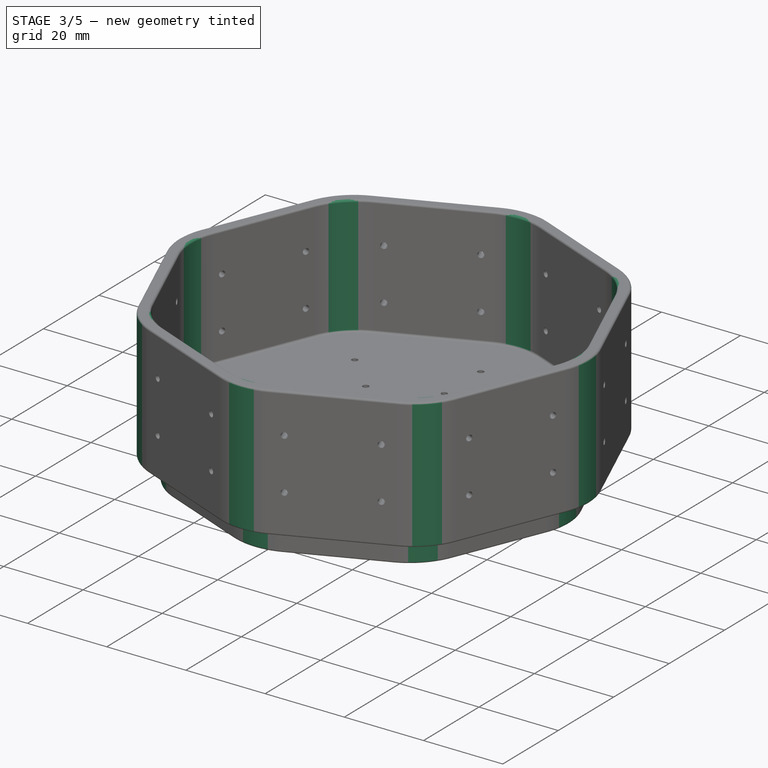
[diagram: stage 3 of 5 — iso view after this stage's code; geometry added in this stage tinted green]
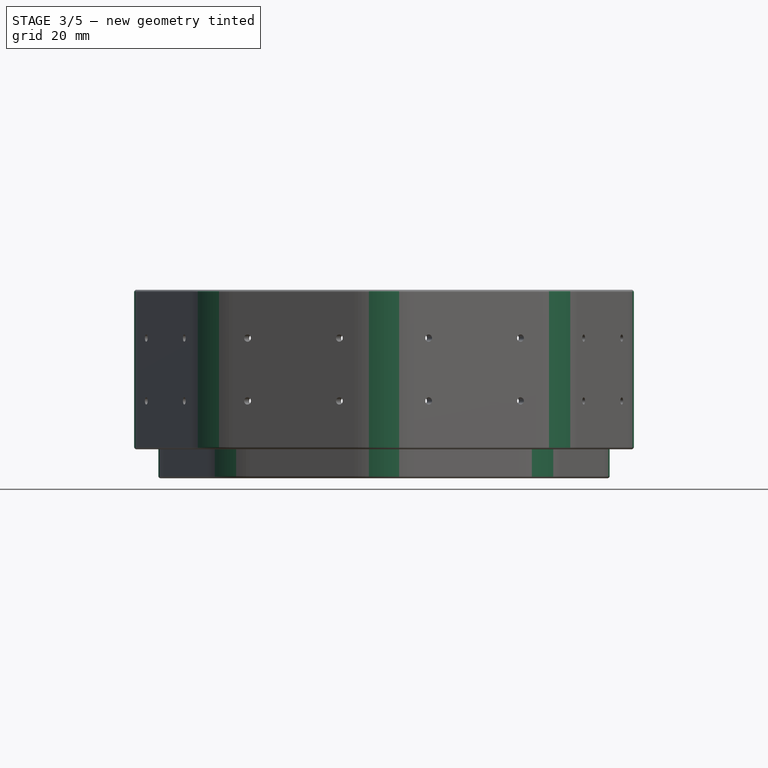
[diagram: stage 3 of 5 — front view after this stage's code; geometry added in this stage tinted green]
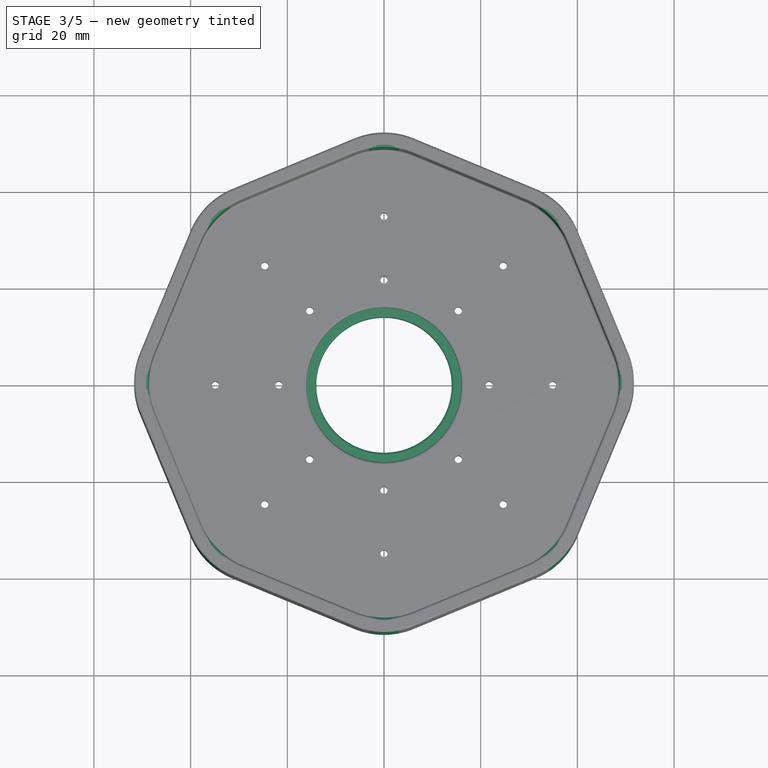
[diagram: stage 3 of 5 — top view after this stage's code; geometry added in this stage tinted green]
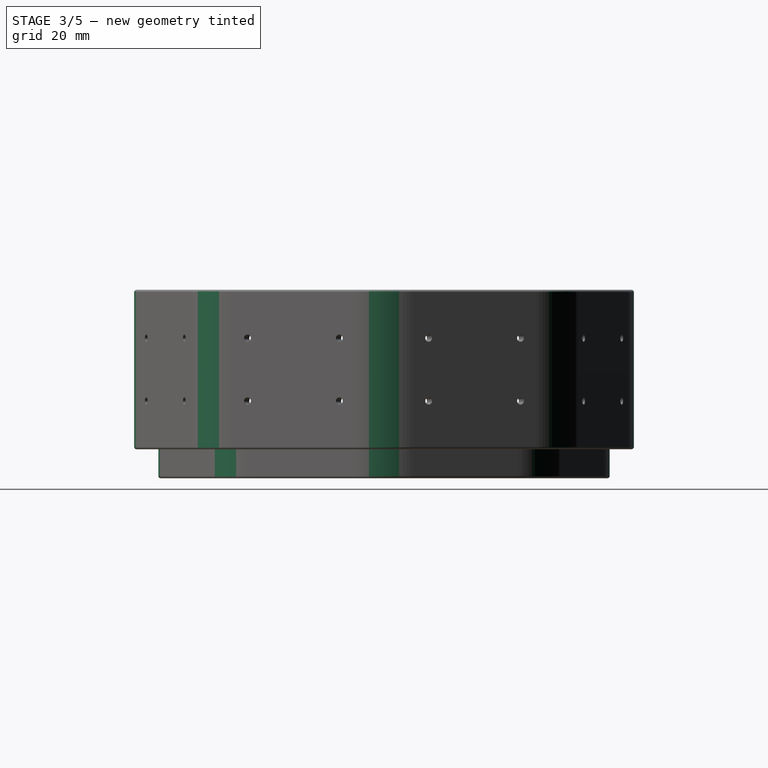
[diagram: stage 3 of 5 — right view after this stage's code; geometry added in this stage tinted green]
FEATURE [PartDesign::Fillet] Fillet
  Base = -> Pocket005 [Edge75,Edge57,Edge9,Edge1,Edge4,Edge44,Edge70,Edge80,Edge121,Edge115,Edge109,Edge107,Edge105,Edge133,Edge139,Edge127,Edge90,Edge89,Edge92,Edge94,Edge96,Edge98,Edge100,Edge102]
  BaseFeature = -> Pocket005
  Radius = 16
  SupportTransform = false
FEATURE [PartDesign::Fillet] Fillet002
  Base = -> Fillet [Edge45,Edge61,Edge12,Edge131,Edge183]
  BaseFeature = -> Fillet
  Radius = 0.5
  SupportTransform = false
  expr: Radius = Spreadsheet.filet_xs
FEATURE [PartDesign::Body] Body001  label="lid"
  Group = -> [Sketch008,Pad002,Sketch009,Pad003,Sketch010,Pocket006,Sketch011,Pocket007,Fillet001,Fillet003,Fillet004,Fillet005]
  Origin = -> Origin001
  Placement = pos=(0,0,68) rot=(0,0,1;0rad)
  Tip = -> Fillet005
FEATURE [Sketcher::SketchObject] Sketch012
  FullyConstrained = true
  MapMode = 5
  Placement = pos=(0,0,3) rot=(0,0,1;0rad)
  Support = -> [Fillet002]
  expr: Constraints[1] = Spreadsheet.coin_hole_outer
  sketch-geometry (1):
    g0: Circle CenterX=0 CenterY=0 CenterZ=0 NormalX=0 NormalY=0 NormalZ=1 AngleXU=0 Radius=16
  constraints (2):
    c: Coincident(g0,g-1)
    c: Diameter(g0) = 32
FEATURE [PartDesign::Pocket] Pocket008
  BaseFeature = -> Fillet002
  Length = 2
  Length2 = 100
  Profile = -> Sketch012
  Type = 0
  expr: Length = Spreadsheet.coin_height
FEATURE [Sketcher::SketchObject] Sketch013
  FullyConstrained = true
  MapMode = 5
  Placement = pos=(0,0,1) rot=(0,0,1;0rad)
  Support = -> [Pocket008]
  expr: Constraints[1] = Spreadsheet.coin_hole_inner
  sketch-geometry (1):
    g0: Circle CenterX=0 CenterY=0 CenterZ=0 NormalX=0 NormalY=0 NormalZ=1 AngleXU=0 Radius=14
  constraints (2):
    c: Coincident(g0,g-1)
    c: Diameter(g0) = 28
FEATURE [PartDesign::Pocket] Pocket009
  BaseFeature = -> Pocket008
  Length = 5
  Length2 = 100
  Profile = -> Sketch013
  Type = 1
FEATURE [PartDesign::Fillet] Fillet006
  Base = -> Pocket009 [Edge417,Edge453,Edge378]
  BaseFeature = -> Pocket009
  Radius = 0.5
  SupportTransform = false
  expr: Radius = Spreadsheet.filet_xs
FEATURE [PartDesign::Body] Body  label="level"
  Group = -> [Sketch,Pad,Sketch001,Pocket,Sketch002,Pad001,Sketch003,Pocket001,Sketch004,Pocket002,Sketch005,Pocket003,Sketch006,Pocket004,Sketch007,Pocket005,Fillet,Fillet002,Sketch012,Pocket008,Sketch013,Pocket009,Fillet006]
  Origin = -> Origin
  Tip = -> Fillet006
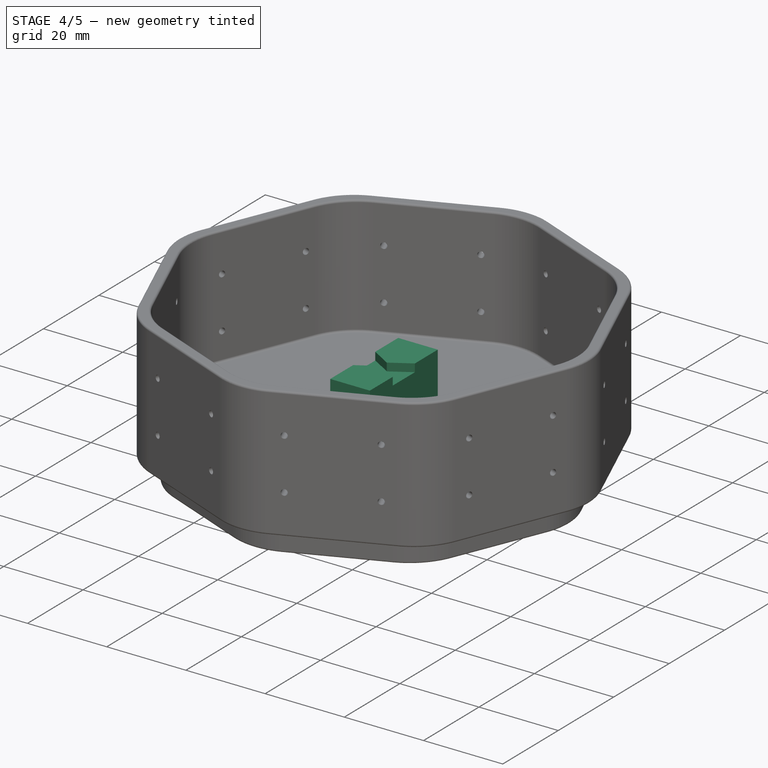
[diagram: stage 4 of 5 — iso view after this stage's code; geometry added in this stage tinted green]
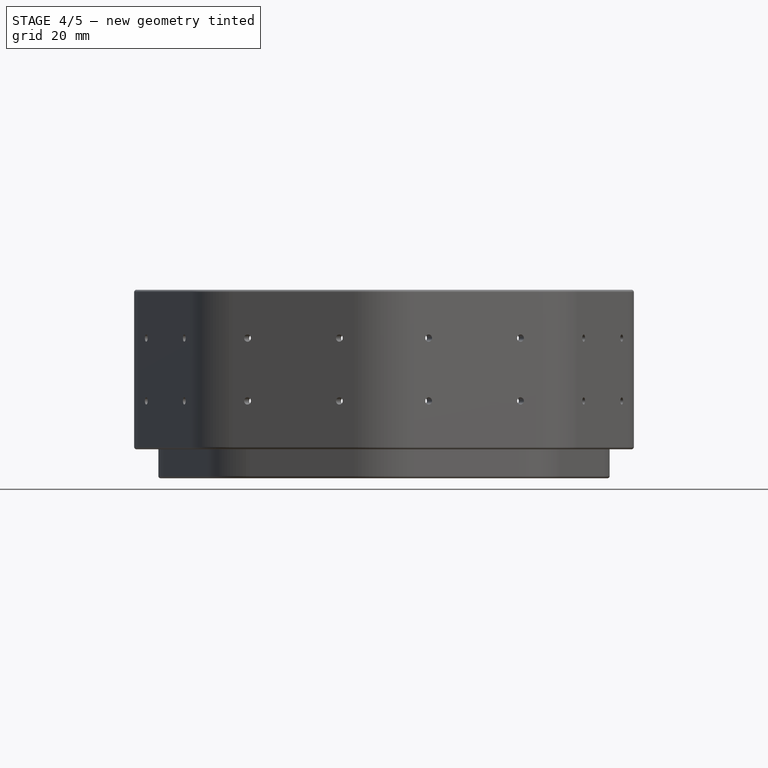
[diagram: stage 4 of 5 — front view after this stage's code; geometry added in this stage tinted green]
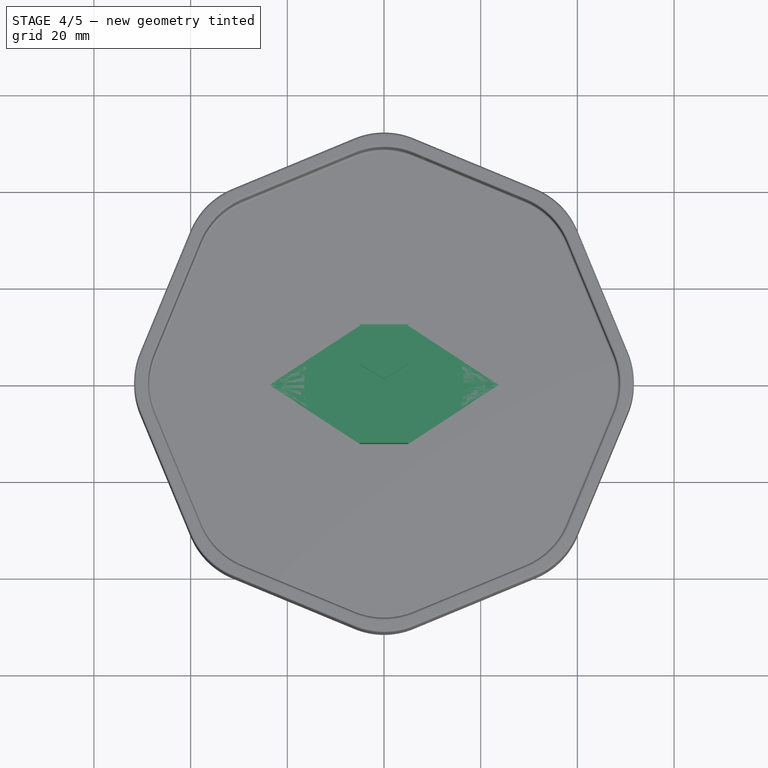
[diagram: stage 4 of 5 — top view after this stage's code; geometry added in this stage tinted green]
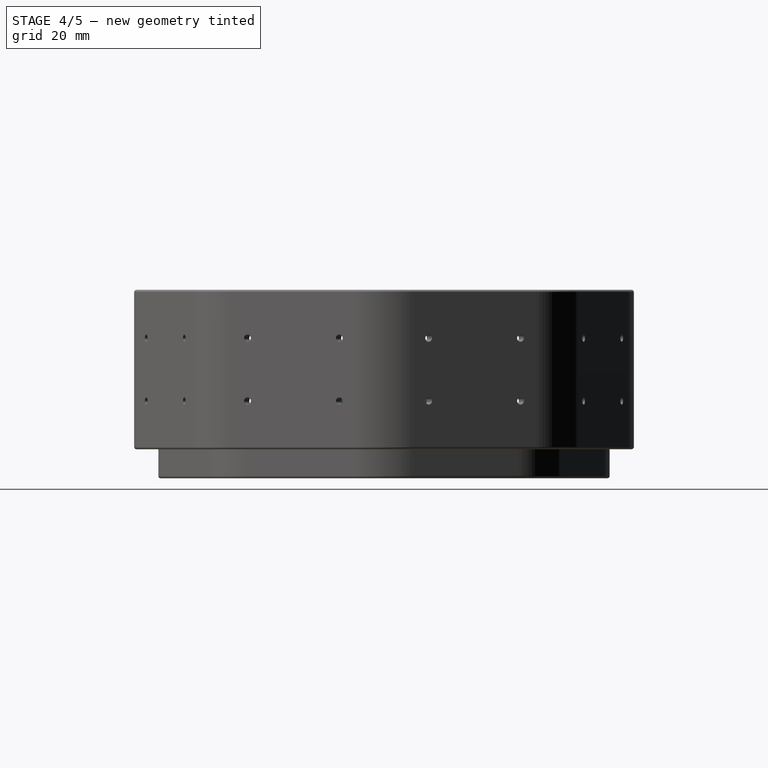
[diagram: stage 4 of 5 — right view after this stage's code; geometry added in this stage tinted green]
FEATURE [Sketcher::SketchObject] Sketch008
  FullyConstrained = true
  MapMode = 5
  Support = -> [XY_Plane001]
  expr: Constraints[25] = Spreadsheet.lid_dia
  sketch-geometry (9):
    g0: LineSegment StartX=-49 StartY=0 StartZ=0 EndX=-34.6482 EndY=-34.6482 EndZ=0
    g1: LineSegment StartX=-34.6482 StartY=-34.6482 StartZ=0 EndX=0 EndY=-49 EndZ=0
    g2: LineSegment StartX=0 StartY=-49 StartZ=0 EndX=34.6482 EndY=-34.6482 EndZ=0
    g3: LineSegment StartX=34.6482 StartY=-34.6482 StartZ=0 EndX=49 EndY=0 EndZ=0
    g4: LineSegment StartX=49 StartY=0 StartZ=0 EndX=34.6482 EndY=34.6482 EndZ=0
    g5: LineSegment StartX=34.6482 StartY=34.6482 StartZ=0 EndX=-7.1e-15 EndY=49 EndZ=0
    g6: LineSegment StartX=-7.1e-15 StartY=49 StartZ=0 EndX=-34.6482 EndY=34.6482 EndZ=0
    g7: LineSegment StartX=-34.6482 StartY=34.6482 StartZ=0 EndX=-49 EndY=0 EndZ=0
    g8: Circle CenterX=0 CenterY=0 CenterZ=0 NormalX=0 NormalY=0 NormalZ=1 AngleXU=0 Radius=49
  constraints (20):
    c: Coincident(g0,g1)
    c: Coincident(g1,g2)
    c: Coincident(g2,g3)
    c: Coincident(g3,g4)
    c: Coincident(g4,g5)
    c: Coincident(g5,g6)
    c: Coincident(g6,g7)
    c: Coincident(g7,g0)
    c: Equal(g0, g1-g7) x7
    c: PointOnObject(g0,g8)
    c: PointOnObject(g1,g8)
    c: PointOnObject(g2,g8)
    c: PointOnObject(g3,g8)
    c: PointOnObject(g4,g8)
    c: PointOnObject(g5,g8)
    c: PointOnObject(g6,g8)
    c: PointOnObject(g7,g8)
    c: Coincident(g8,g-1)
    c: PointOnObject(g7,g-1)
    c: DistanceX(g0,g3) = 98
FEATURE [PartDesign::Pad] Pad002
  Direction = (0,0,1)
  Length = 3
  Length2 = 100
  Profile = -> Sketch008
  Type = 0
  expr: Length = Spreadsheet.thickness
FEATURE [Sketcher::SketchObject] Sketch009
  FullyConstrained = true
  MapMode = 5
  Placement = pos=(0,0,3) rot=(0,0,1;0rad)
  Support = -> [Pad002]
  expr: Constraints[8] = Spreadsheet.handle_width
  expr: Constraints[9] = Spreadsheet.handle_length
  sketch-geometry (4):
    g0: LineSegment StartX=-5 StartY=12.25 StartZ=0 EndX=5 EndY=12.25 EndZ=0
    g1: LineSegment StartX=5 StartY=12.25 StartZ=0 EndX=5 EndY=-12.25 EndZ=0
    g2: LineSegment StartX=5 StartY=-12.25 StartZ=0 EndX=-5 EndY=-12.25 EndZ=0
    g3: LineSegment StartX=-5 StartY=-12.25 StartZ=0 EndX=-5 EndY=12.25 EndZ=0
  constraints (10):
    c: Coincident(g0,g1)
    c: Coincident(g1,g2)
    c: Coincident(g2,g3)
    c: Coincident(g3,g0)
    c: Horizontal(g2)
    c: Vertical(g1)
    c: Symmetric(g0,g0,g-2)
    c: Symmetric(g0,g2,g-1)
    c: DistanceX(g0,g0) = 10
    c: DistanceY(g3,g3) = 24.5
FEATURE [PartDesign::Pad] Pad003
  BaseFeature = -> Pad002
  Direction = (0,0,1)
  Length = 15
  Length2 = 100
  Profile = -> Sketch009
  Type = 0
  expr: Length = Spreadsheet.handle_height
FEATURE [Sketcher::SketchObject] Sketch010
  ExternalGeometry = -> [Pad003]
  FullyConstrained = true
  MapMode = 5
  Placement = pos=(0,0,18) rot=(0,0,1;0rad)
  Support = -> [Pad003]
  expr: Constraints[6] = Spreadsheet.slot_width
  expr: Constraints[20] = Spreadsheet.slot_width * 2
  sketch-geometry (24):
    g0: LineSegment StartX=-5 StartY=4 StartZ=0 EndX=5 EndY=-2 EndZ=0
    g1: LineSegment StartX=5 StartY=-2 StartZ=0 EndX=5 EndY=-4 EndZ=0
    g2: LineSegment StartX=5 StartY=-4 StartZ=0 EndX=-5 EndY=2 EndZ=0
    g3: LineSegment StartX=-5 StartY=2 StartZ=0 EndX=-5 EndY=4 EndZ=0
    g4: LineSegment StartX=5 StartY=4 StartZ=0 EndX=5 EndY=2 EndZ=0
    g5: LineSegment StartX=5 StartY=2 StartZ=0 EndX=-5 EndY=-4 EndZ=0
    g6: LineSegment StartX=-5 StartY=-4 StartZ=0 EndX=-5 EndY=-2 EndZ=0
    g7: LineSegment StartX=-5 StartY=-2 StartZ=0 EndX=5 EndY=4 EndZ=0
    g8: LineSegment StartX=-5 StartY=2 StartZ=0 EndX=-5 EndY=-2 EndZ=0
    g9: LineSegment StartX=5 StartY=2 StartZ=0 EndX=5 EndY=-2 EndZ=0
    g10: GeomPoint X=0 Y=1 Z=0
    g11: GeomPoint X=1.66667 Y=-1e-16 Z=0
    g12: GeomPoint X=0 Y=-1 Z=0
    g13: GeomPoint X=-1.66667 Y=0 Z=0
    g14: LineSegment StartX=-5 StartY=4 StartZ=0 EndX=0 EndY=1 EndZ=0
    g15: LineSegment StartX=0 StartY=1 StartZ=0 EndX=5 EndY=4 EndZ=0
    g16: LineSegment StartX=5 StartY=4 StartZ=0 EndX=5 EndY=2 EndZ=0
    g17: LineSegment StartX=5 StartY=-2 StartZ=0 EndX=5 EndY=-4 EndZ=0
    g18: LineSegment StartX=5 StartY=-4 StartZ=0 EndX=0 EndY=-1 EndZ=0
    g19: LineSegment StartX=0 StartY=-1 StartZ=0 EndX=-5 EndY=-4 EndZ=0
    g20: LineSegment StartX=-5 StartY=-4 StartZ=0 EndX=-5 EndY=-2 EndZ=0
    g21: LineSegment StartX=-5 StartY=2 StartZ=0 EndX=-5 EndY=4 EndZ=0
    g22: LineSegment StartX=-5 StartY=2 StartZ=0 EndX=-5 EndY=-2 EndZ=0
    g23: LineSegment StartX=5 StartY=2 StartZ=0 EndX=5 EndY=-2 EndZ=0
  constraints (54):
    c: PointOnObject(g0,g-4)
    c: Coincident(g0,g1)
    c: PointOnObject(g1,g-5)
    c: Coincident(g1,g2)
    c: Coincident(g2,g3)
    c: Coincident(g3,g0)
    c: DistanceY(g3,g3) = 2
    c: Equal(g1,g3)
    c: PointOnObject(g4,g-5)
    c: Coincident(g4,g5)
    c: PointOnObject(g5,g-4)
    c: Coincident(g5,g6)
    c: Coincident(g6,g7)
    c: Coincident(g7,g4)
    c: Equal(g4,g1)
    c: Equal(g1,g6)
    c: Coincident(g8,g2)
    c: Coincident(g8,g6)
    c: Coincident(g9,g4)
    c: Coincident(g9,g0)
    c: DistanceY(g8,g8) = 4
    c: Equal(g9,g8)
    c: Symmetric(g2,g6,g-1)
    c: Symmetric(g0,g4,g-1)
    c: PointOnObject(g10,g0)
    c: PointOnObject(g11,g5)
    c: PointOnObject(g12,g2)
    c: PointOnObject(g13,g7)
    c: PointOnObject(g10,g7)
    c: PointOnObject(g11,g0)
    c: PointOnObject(g12,g5)
    c: PointOnObject(g13,g2)
    c: Coincident(g0,g14)
    c: Coincident(g14,g10)
    c: Coincident(g14,g15)
    c: Coincident(g15,g4)
    c: Coincident(g15,g16)
    c: Coincident(g16,g4)
    c: Vertical(g16)
    c: Coincident(g17,g1)
    c: Coincident(g17,g18)
    c: Coincident(g18,g12)
    c: Coincident(g18,g19)
    c: Coincident(g19,g5)
    c: Coincident(g19,g20)
    c: Coincident(g20,g6)
    c: Vertical(g20)
    c: Coincident(g21,g14)
    c: Coincident(g22,g21)
    c: Coincident(g22,g20)
    c: Coincident(g23,g16)
    c: Coincident(g23,g17)
    c: Coincident(g21,g2)
    c: Coincident(g17,g0)
FEATURE [PartDesign::Pocket] Pocket006
  BaseFeature = -> Pad003
  Length = 2
  Length2 = 100
  Profile = -> Sketch010
  Type = 0
  expr: Length = Spreadsheet.slot_height
FEATURE [Sketcher::SketchObject] Sketch011
  ExternalGeometry = -> [Pocket006]
  FullyConstrained = true
  MapMode = 5
  Placement = pos=(0,0,3) rot=(0,0,1;0rad)
  Support = -> [Pocket006]
  expr: Constraints[50] = Spreadsheet.lid_dia / 2 / 4
  expr: Constraints[67] = Spreadsheet.holes_dia
  expr: Constraints[83] = Spreadsheet.lid_dia / 2 / 4
  sketch-geometry (42):
    g0: Circle CenterX=0 CenterY=0 CenterZ=0 NormalX=0 NormalY=0 NormalZ=1 AngleXU=0 Radius=36.75
    g1: Circle CenterX=0 CenterY=0 CenterZ=0 NormalX=0 NormalY=0 NormalZ=1 AngleXU=0 Radius=24.5
    g2: LineSegment StartX=-7.1e-15 StartY=49 StartZ=0 EndX=0 EndY=0 EndZ=0
    g3: LineSegment StartX=0 StartY=0 StartZ=0 EndX=34.6482 EndY=34.6482 EndZ=0
    g4: LineSegment StartX=49 StartY=-3e-15 StartZ=0 EndX=0 EndY=0 EndZ=0
    g5: LineSegment StartX=34.6482 StartY=-34.6482 StartZ=0 EndX=0 EndY=0 EndZ=0
    g6: LineSegment StartX=0 StartY=-49 StartZ=0 EndX=0 EndY=0 EndZ=0
    g7: LineSegment StartX=-34.6482 StartY=-34.6482 StartZ=0 EndX=0 EndY=0 EndZ=0
    g8: LineSegment StartX=-49 StartY=0 StartZ=0 EndX=0 EndY=0 EndZ=0
    g9: LineSegment StartX=-34.6482 StartY=34.6482 StartZ=0 EndX=0 EndY=0 EndZ=0
    g10: GeomPoint X=-17.3241 Y=17.3241 Z=0
    g11: GeomPoint X=-25.9862 Y=25.9862 Z=0
    g12: GeomPoint X=-5.3e-15 Y=36.75 Z=0
    g13: GeomPoint X=-3.6e-15 Y=24.5 Z=0
    g14: GeomPoint X=17.3241 Y=17.3241 Z=0
    g15: GeomPoint X=25.9862 Y=25.9862 Z=0
    g16: GeomPoint X=24.5 Y=-1.5e-15 Z=0
    g17: GeomPoint X=36.75 Y=-2.3e-15 Z=0
    g18: GeomPoint X=17.3241 Y=-17.3241 Z=0
    g19: GeomPoint X=25.9862 Y=-25.9862 Z=0
    g20: GeomPoint X=0 Y=-24.5 Z=0
    g21: GeomPoint X=0 Y=-36.75 Z=0
    g22: GeomPoint X=-25.9862 Y=-25.9862 Z=0
    g23: GeomPoint X=-17.3241 Y=-17.3241 Z=0
    g24: GeomPoint X=-36.75 Y=0 Z=0
    g25: GeomPoint X=-24.5 Y=0 Z=0
    g26: Circle CenterX=-25.9862 CenterY=25.9862 CenterZ=0 NormalX=0 NormalY=0 NormalZ=1 AngleXU=0 Radius=0.75
    g27: Circle CenterX=-17.3241 CenterY=17.3241 CenterZ=0 NormalX=0 NormalY=0 NormalZ=1 AngleXU=0 Radius=0.75
    g28: Circle CenterX=-3.6e-15 CenterY=24.5 CenterZ=0 NormalX=0 NormalY=0 NormalZ=1 AngleXU=0 Radius=0.75
    g29: Circle CenterX=-5.3e-15 CenterY=36.75 CenterZ=0 NormalX=0 NormalY=0 NormalZ=1 AngleXU=0 Radius=0.75
    g30: Circle CenterX=25.9862 CenterY=25.9862 CenterZ=0 NormalX=0 NormalY=0 NormalZ=1 AngleXU=0 Radius=0.75
    g31: Circle CenterX=17.3241 CenterY=17.3241 CenterZ=0 NormalX=0 NormalY=0 NormalZ=1 AngleXU=0 Radius=0.75
    g32: Circle CenterX=24.5 CenterY=-1.5e-15 CenterZ=0 NormalX=0 NormalY=0 NormalZ=1 AngleXU=0 Radius=0.75
    g33: Circle CenterX=36.75 CenterY=-2.3e-15 CenterZ=0 NormalX=0 NormalY=0 NormalZ=1 AngleXU=0 Radius=0.75
    g34: Circle CenterX=25.9862 CenterY=-25.9862 CenterZ=0 NormalX=0 NormalY=0 NormalZ=1 AngleXU=0 Radius=0.75
    g35: Circle CenterX=17.3241 CenterY=-17.3241 CenterZ=0 NormalX=0 NormalY=0 NormalZ=1 AngleXU=0 Radius=0.75
    g36: Circle CenterX=0 CenterY=-24.5 CenterZ=0 NormalX=0 NormalY=0 NormalZ=1 AngleXU=0 Radius=0.75
    g37: Circle CenterX=0 CenterY=-36.75 CenterZ=0 NormalX=0 NormalY=0 NormalZ=1 AngleXU=0 Radius=0.75
    g38: Circle CenterX=-25.9862 CenterY=-25.9862 CenterZ=0 NormalX=0 NormalY=0 NormalZ=1 AngleXU=0 Radius=0.75
    g39: Circle CenterX=-17.3241 CenterY=-17.3241 CenterZ=0 NormalX=0 NormalY=0 NormalZ=1 AngleXU=0 Radius=0.75
    g40: Circle CenterX=-24.5 CenterY=0 CenterZ=0 NormalX=0 NormalY=0 NormalZ=1 AngleXU=0 Radius=0.75
    g41: Circle CenterX=-36.75 CenterY=0 CenterZ=0 NormalX=0 NormalY=0 NormalZ=1 AngleXU=0 Radius=0.75
  constraints (84):
    c: Coincident(g0,g-1)
    c: Coincident(g1,g-1)
    c: Coincident(g2,g-10)
    c: Coincident(g2,g-1)
    c: Coincident(g3,g-1)
    c: Coincident(g3,g-10)
    c: Coincident(g4,g-9)
    c: Coincident(g4,g-1)
    c: Coincident(g5,g-8)
    c: Coincident(g5,g-1)
    c: Coincident(g6,g-7)
    c: Coincident(g6,g-1)
    c: Coincident(g7,g-6)
    c: Coincident(g7,g-1)
    c: Coincident(g8,g-5)
    c: Coincident(g8,g-1)
    c: Coincident(g9,g-4)
    c: Coincident(g9,g-1)
    c: PointOnObject(g10,g1)
    c: PointOnObject(g11,g0)
    c: PointOnObject(g12,g0)
    c: PointOnObject(g13,g1)
    c: PointOnObject(g14,g1)
    c: PointOnObject(g15,g0)
    c: PointOnObject(g16,g1)
    c: PointOnObject(g17,g0)
    c: PointOnObject(g18,g1)
    c: PointOnObject(g19,g0)
    c: PointOnObject(g20,g1)
    c: PointOnObject(g21,g0)
    c: PointOnObject(g22,g0)
    c: PointOnObject(g23,g1)
    c: PointOnObject(g24,g0)
    c: PointOnObject(g25,g1)
    c: PointOnObject(g24,g8)
    c: PointOnObject(g25,g8)
    c: PointOnObject(g10,g9)
    c: PointOnObject(g11,g9)
    c: PointOnObject(g13,g2)
    c: PointOnObject(g12,g2)
    c: PointOnObject(g14,g3)
    c: PointOnObject(g15,g3)
    c: PointOnObject(g16,g4)
    c: PointOnObject(g17,g4)
    c: PointOnObject(g18,g5)
    c: PointOnObject(g19,g5)
    c: PointOnObject(g20,g6)
    c: PointOnObject(g21,g6)
    c: PointOnObject(g22,g7)
    c: PointOnObject(g23,g7)
    c: DistanceX(g8,g24) = 12.25
    c: Coincident(g26,g11)
    c: Coincident(g27,g10)
    c: Coincident(g28,g13)
    c: Coincident(g29,g12)
    c: Coincident(g30,g15)
    c: Coincident(g31,g14)
    c: Coincident(g32,g16)
    c: Coincident(g33,g17)
    c: Coincident(g34,g19)
    c: Coincident(g35,g18)
    c: Coincident(g36,g20)
    c: Coincident(g37,g21)
    c: Coincident(g38,g22)
    c: Coincident(g39,g23)
    c: Coincident(g40,g25)
    c: Coincident(g41,g24)
    c: Diameter(g26) = 1.5
    c: Equal(g26,g29)
    c: Equal(g29,g28)
    c: Equal(g28,g27)
    c: Equal(g27,g40)
    c: Equal(g40,g41)
    c: Equal(g41,g31)
    c: Equal(g31,g32)
    c: Equal(g32,g30)
    c: Equal(g30,g33)
    c: Equal(g33,g34)
    c: Equal(g34,g35)
    c: Equal(g35,g36)
    c: Equal(g36,g39)
    c: Equal(g39,g37)
    c: Equal(g37,g38)
    c: DistanceX(g41,g40) = 12.25
FEATURE [PartDesign::Pocket] Pocket007
  BaseFeature = -> Pocket006
  Length = 5
  Length2 = 100
  Profile = -> Sketch011
  Type = 1
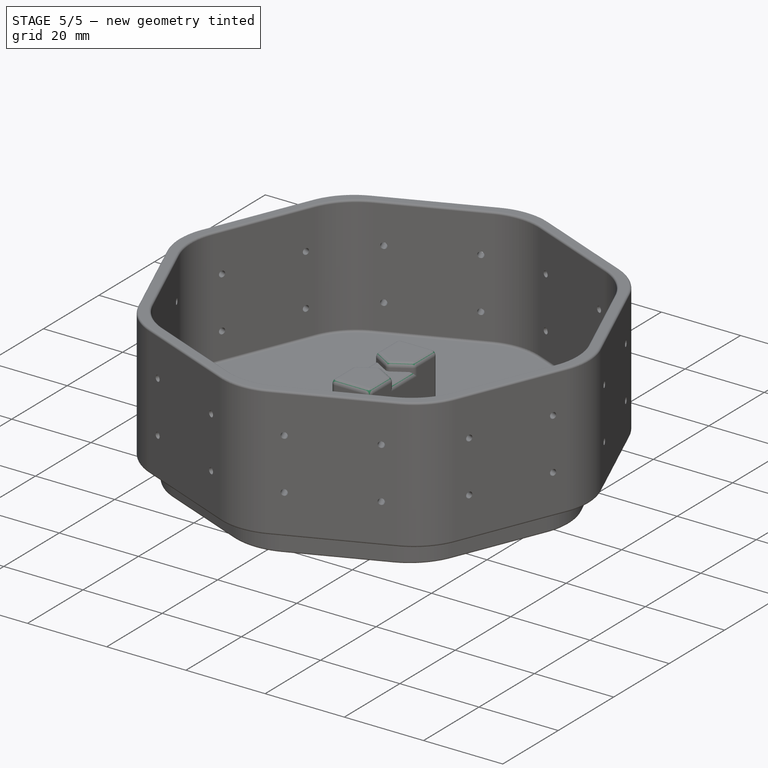
[diagram: stage 5 of 5 — iso view after this stage's code; geometry added in this stage tinted green]
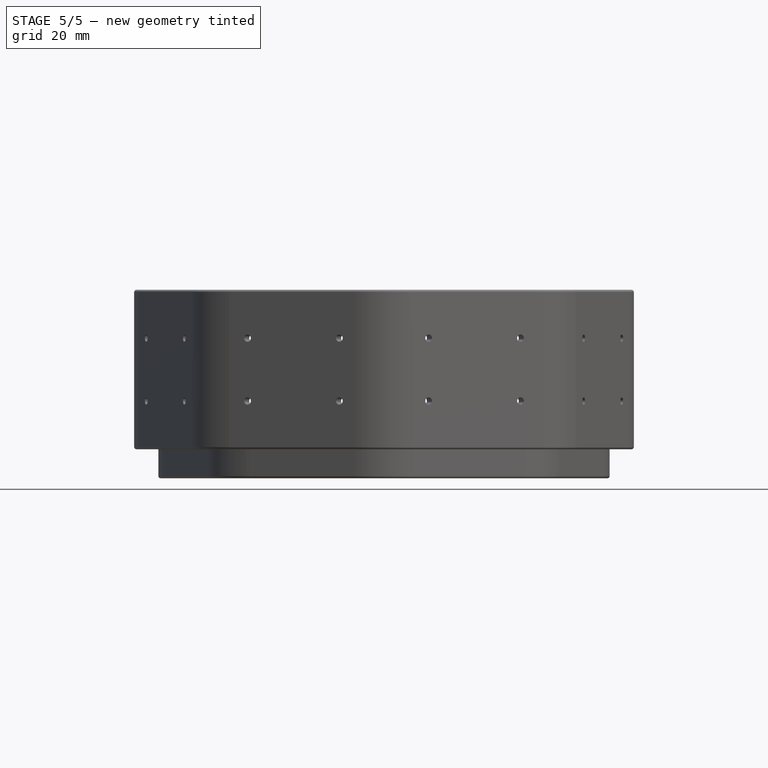
[diagram: stage 5 of 5 — front view after this stage's code; geometry added in this stage tinted green]
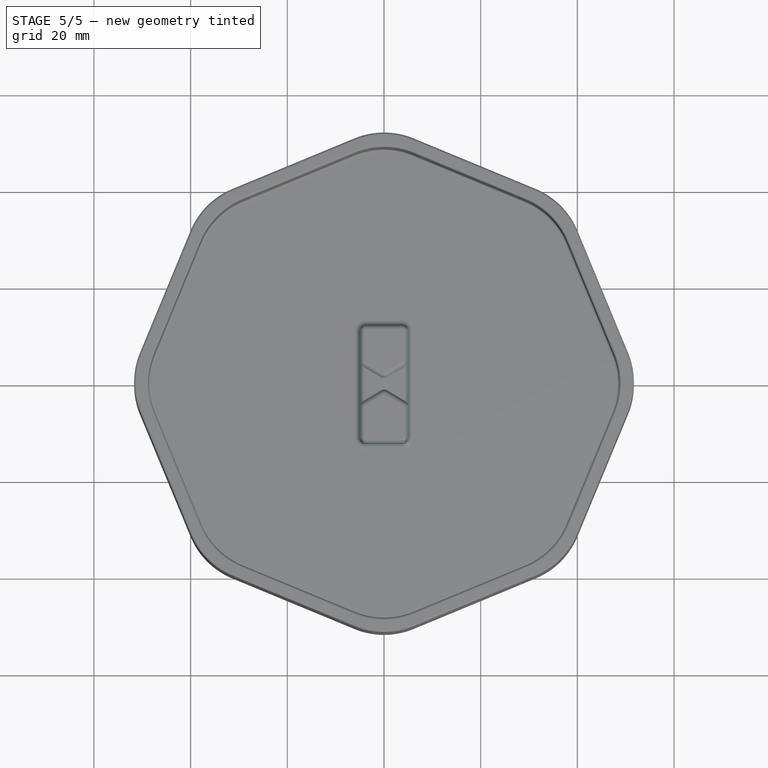
[diagram: stage 5 of 5 — top view after this stage's code; geometry added in this stage tinted green]
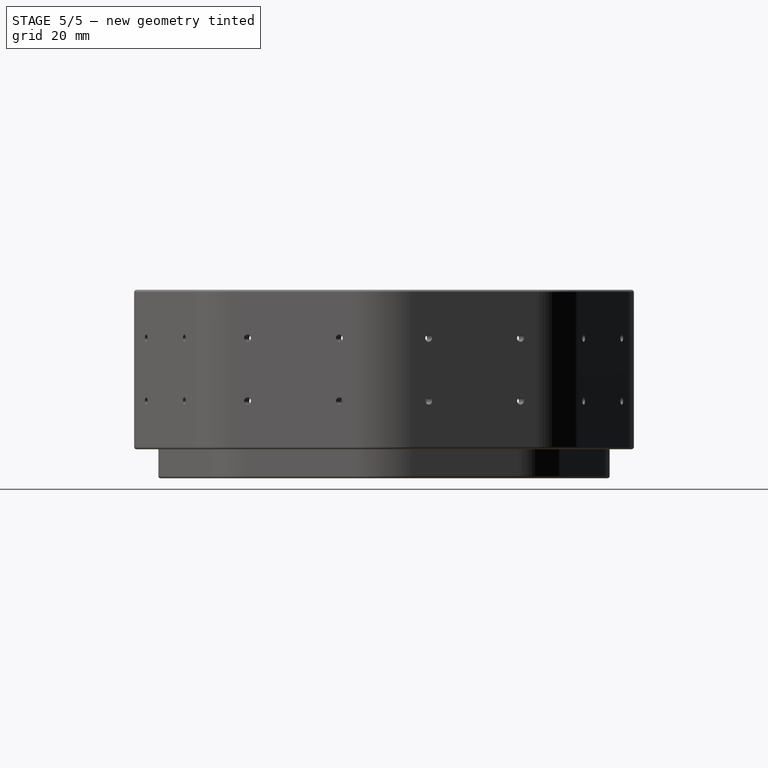
[diagram: stage 5 of 5 — right view after this stage's code; geometry added in this stage tinted green]
FEATURE [PartDesign::Fillet] Fillet001
  Base = -> Pocket007 [Edge5,Edge1,Edge2,Edge8,Edge60,Edge59,Edge58,Edge57]
  BaseFeature = -> Pocket007
  Radius = 18.1818
  SupportTransform = false
  expr: Radius = Spreadsheet.filet_xl
FEATURE [PartDesign::Fillet] Fillet003
  Base = -> Fillet001 [Edge50,Edge17]
  BaseFeature = -> Fillet001
  Radius = 0.5
  SupportTransform = false
  expr: Radius = Spreadsheet.filet_xs
FEATURE [PartDesign::Fillet] Fillet004
  Base = -> Fillet003 [Face60,Face58,Face57,Face59,Edge193,Edge194,Edge186,Edge185]
  BaseFeature = -> Fillet003
  Radius = 1.2
  SupportTransform = false
  expr: Radius = Spreadsheet.filet_sm
FEATURE [PartDesign::Fillet] Fillet005
  Base = -> Fillet004 [Edge269,Edge272]
  BaseFeature = -> Fillet004
  Radius = 1.2
  SupportTransform = false
  expr: Radius = Spreadsheet.filet_sm
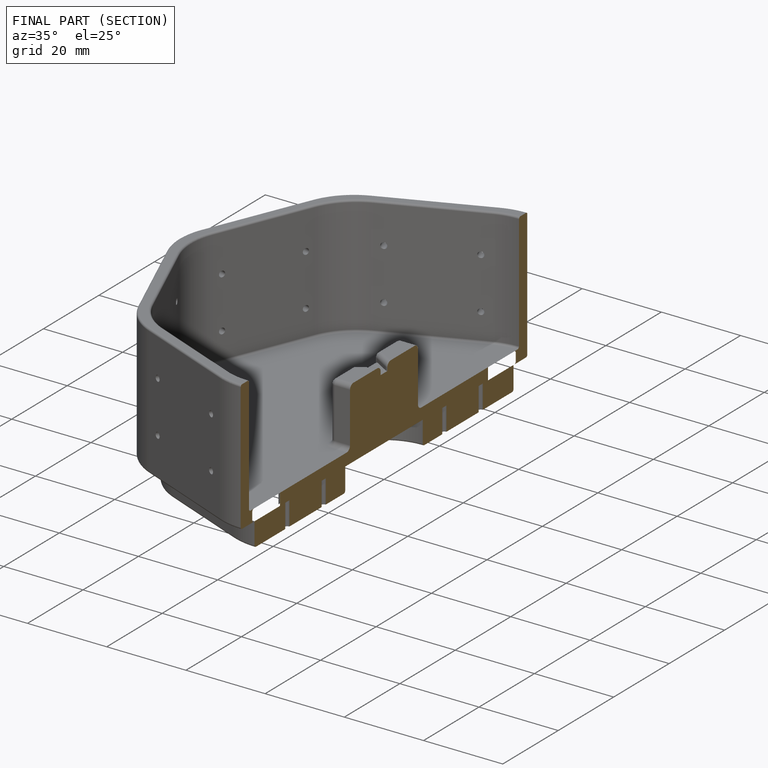
[diagram: finished part — half-section view (interior)]
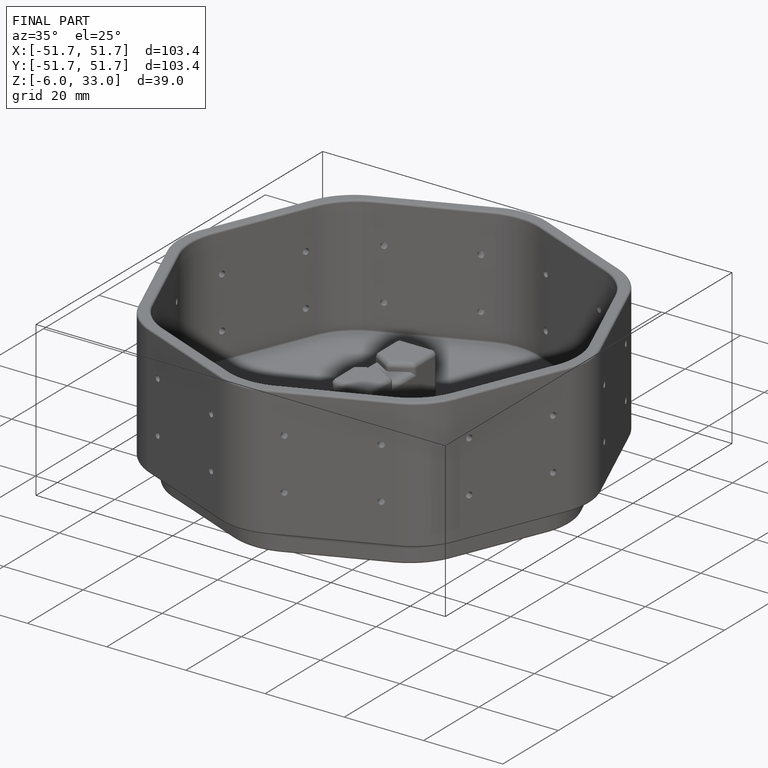
[diagram: finished part — iso view with bounding-box wireframe]
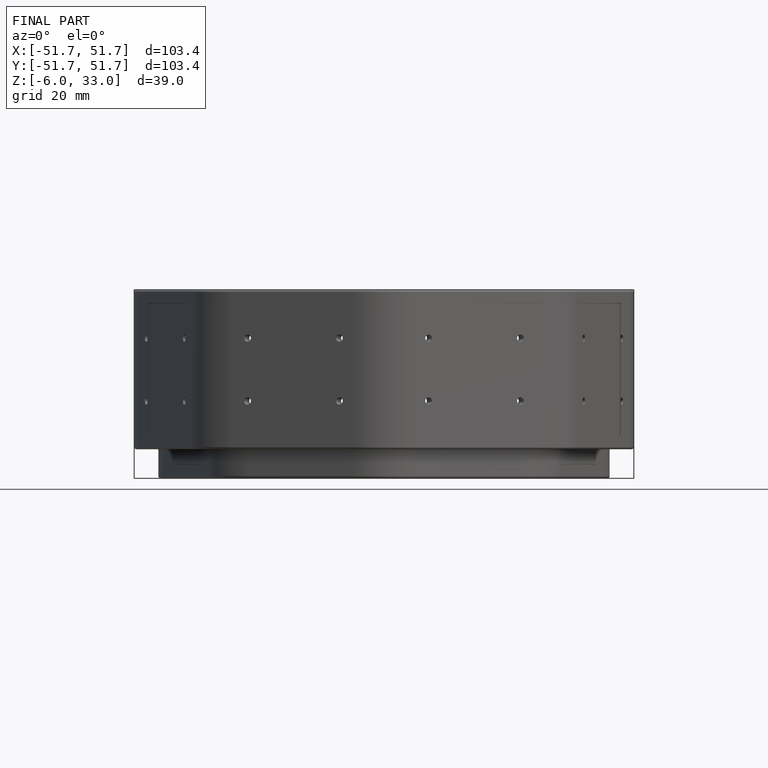
[diagram: finished part — front view with bounding-box wireframe]
